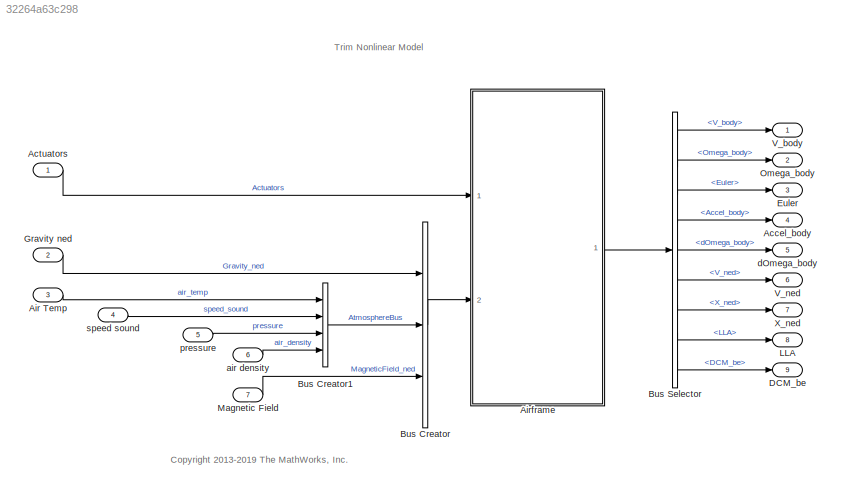
MODEL slx_32264a63c298
KIND model
CONFIG AbsTol = auto
CONFIG EnableMultiTasking = on
CONFIG FixedStep = Ts
CONFIG MaxStep = auto
CONFIG MinStep = auto
CONFIG RelTol = 1e-3
CONFIG SampleTimeConstraint = Unconstrained
CONFIG Solver = ode3
CONFIG SolverName = ode3
CONFIG StartTime = 0
CONFIG StopTime = 100
BLOCK [Outport] Accel_body
  Port = 4
  VectorParamsAs1DForOutWhenUnconnected = off
BLOCK [Inport] Actuators
  OutDataTypeStr = double
  PortDimensions = [1 4]
BLOCK [Inport] Air Temp
  OutDataTypeStr = double
  Port = 3
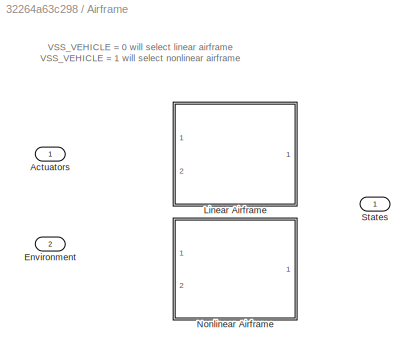
BLOCK [SubSystem] Airframe
  Ports = [2, 1]
  RequestExecContextInheritance = off
  Variant = on
BLOCK [Inport] Airframe/Actuators
BLOCK [Inport] Airframe/Environment
  OutDataTypeStr = Bus: EnvironmentBus
  Port = 2
BLOCK [ModelReference] Airframe/Linear Airframe
  ModelNameDialog = linearAirframe.slx
  ModelReferenceVersion = 1.39
  Ports = [2, 1]
  VariantControl = VSS_VEHICLE_LINEAR
BLOCK [ModelReference] Airframe/Nonlinear Airframe
  ModelNameDialog = nonlinearAirframe.slx
  ModelReferenceVersion = 1.149
  Ports = [2, 1]
  VariantControl = VSS_VEHICLE_NONLINEAR
BLOCK [Outport] Airframe/States
  OutDataTypeStr = Bus: StatesBus
  VectorParamsAs1DForOutWhenUnconnected = off
BLOCK [BusCreator] Bus Creator
  DisplayOption = bar
  InheritFromInputs = on
  Inputs = 3
  NonVirtualBus = on
  OutDataTypeStr = Bus: EnvironmentBus
  Ports = [3, 1]
BLOCK [BusCreator] Bus Creator1
  DisplayOption = bar
  InheritFromInputs = on
  Inputs = 4
  NonVirtualBus = on
  OutDataTypeStr = Bus: AtmosphereBus
  Ports = [4, 1]
BLOCK [BusSelector] Bus Selector
  OutputSignals = V_body,Omega_body,Euler,Accel_body,dOmega_body,V_ned,X_ned,LLA,DCM_be
  Ports = [1, 9]
BLOCK [Outport] DCM_be
  Port = 9
  VectorParamsAs1DForOutWhenUnconnected = off
BLOCK [Outport] Euler
  Port = 3
  VectorParamsAs1DForOutWhenUnconnected = off
BLOCK [Inport] Gravity ned
  OutDataTypeStr = double
  Port = 2
BLOCK [Outport] LLA
  Port = 8
  VectorParamsAs1DForOutWhenUnconnected = off
BLOCK [Inport] Magnetic Field
  OutDataTypeStr = double
  Port = 7
BLOCK [Outport] Omega_body
  Port = 2
  VectorParamsAs1DForOutWhenUnconnected = off
BLOCK [Outport] V_body
  VectorParamsAs1DForOutWhenUnconnected = off
BLOCK [Outport] V_ned
  Port = 6
  VectorParamsAs1DForOutWhenUnconnected = off
BLOCK [Outport] X_ned
  Port = 7
  VectorParamsAs1DForOutWhenUnconnected = off
BLOCK [Inport] air density
  OutDataTypeStr = double
  Port = 6
BLOCK [Outport] dOmega_body
  Port = 5
  VectorParamsAs1DForOutWhenUnconnected = off
BLOCK [Inport] pressure
  OutDataTypeStr = double
  Port = 5
BLOCK [Inport] speed sound
  OutDataTypeStr = double
  Port = 4
ANNOTATION (root): Trim Nonlinear Model
ANNOTATION (root): <copyright redacted>
ANNOTATION Airframe: VSS_VEHICLE = 0 will select linear airframe VSS_VEHICLE = 1 will select nonlinear airframe
LINE Actuators:1 -> Airframe:1
LINE Air Temp:1 -> Bus Creator1:1
LINE Airframe:1 -> Bus Selector:1
LINE Bus Creator1:1 -> Bus Creator:2
LINE Bus Creator:1 -> Airframe:2
LINE Bus Selector:1 -> V_body:1
LINE Bus Selector:2 -> Omega_body:1
LINE Bus Selector:3 -> Euler:1
LINE Bus Selector:4 -> Accel_body:1
LINE Bus Selector:5 -> dOmega_body:1
LINE Bus Selector:6 -> V_ned:1
LINE Bus Selector:7 -> X_ned:1
LINE Bus Selector:8 -> LLA:1
LINE Bus Selector:9 -> DCM_be:1
LINE Gravity ned:1 -> Bus Creator:1
LINE Magnetic Field:1 -> Bus Creator:3
LINE air density:1 -> Bus Creator1:4
LINE pressure:1 -> Bus Creator1:3
LINE speed sound:1 -> Bus Creator1:2
